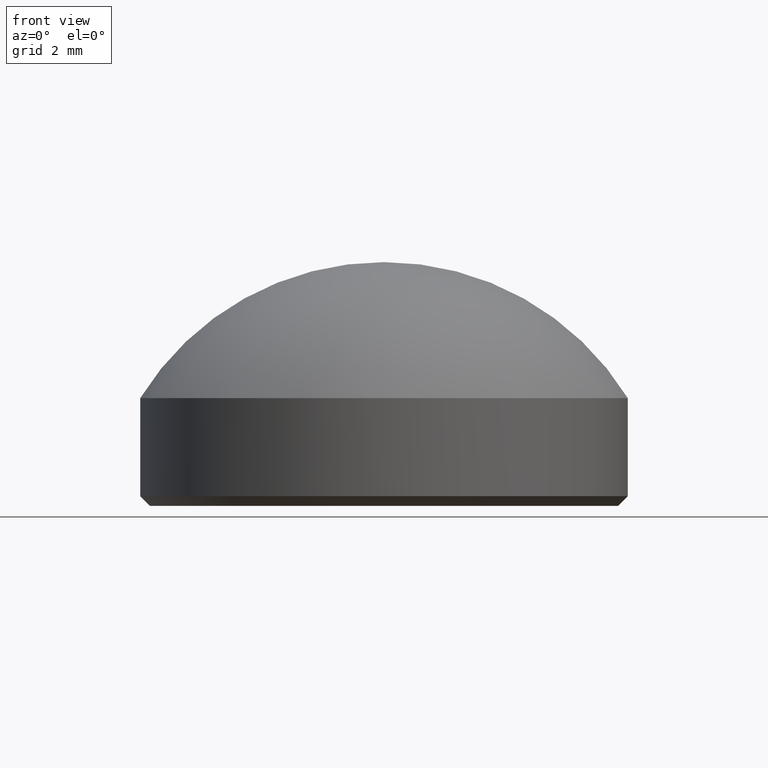
[diagram: clean part render]
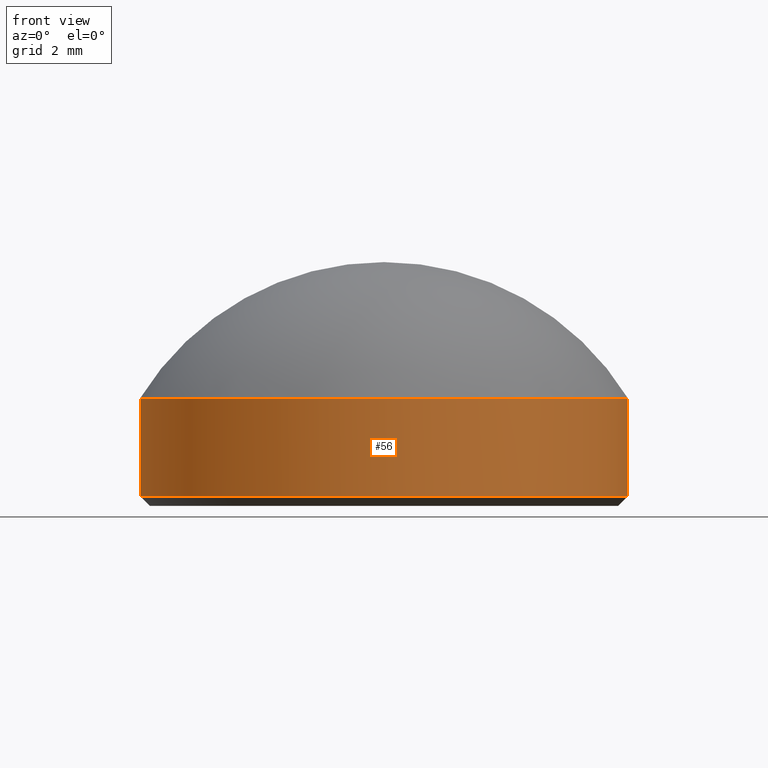
[diagram: same view with one face highlighted and labeled with its STEP entity id]
A machine part, front view. The second image highlights one B-rep face of the part: STEP entity #56.
In plain terms, the highlighted cylindrical surface (partial cylindrical patch) has radius 5 mm, axis along (-0, -0, -1).
Its self-contained STEP definition (entity closure, byte-faithful):
#18 = CARTESIAN_POINT ( 'NONE',  ( -5.000000000000000000, 0.000000000000000000, 2.209999999999999964 ) ) ;
#25 = LINE ( 'NONE', #207, #166 ) ;
#27 = VERTEX_POINT ( 'NONE', #129 ) ;
#30 = EDGE_CURVE ( 'NONE', #183, #167, #97, .T. ) ;
#38 = EDGE_CURVE ( 'NONE', #156, #27, #77, .T. ) ;
#43 = DIRECTION ( 'NONE',  ( -1.000000000000000000, 0.000000000000000000, 0.000000000000000000 ) ) ;
#44 = AXIS2_PLACEMENT_3D ( 'NONE', #186, #76, #43 ) ;
#45 = ORIENTED_EDGE ( 'NONE', *, *, #38, .T. ) ;
#47 = FACE_OUTER_BOUND ( 'NONE', #98, .T. ) ;
#56 = ADVANCED_FACE ( 'NONE', ( #47 ), #191, .T. ) ;
#66 = EDGE_CURVE ( 'NONE', #167, #27, #25, .T. ) ;
#72 = CARTESIAN_POINT ( 'NONE',  ( -5.000000000000000000, 0.000000000000000000, 2.209999999999999964 ) ) ;
#76 = DIRECTION ( 'NONE',  ( -0.000000000000000000, -0.000000000000000000, -1.000000000000000000 ) ) ;
#77 = CIRCLE ( 'NONE', #92, 5.000000000000000000 ) ;
#78 = DIRECTION ( 'NONE',  ( 0.000000000000000000, 0.000000000000000000, 1.000000000000000000 ) ) ;
#79 = CARTESIAN_POINT ( 'NONE',  ( -5.000000000000000000, 0.000000000000000000, 0.1999999999999987899 ) ) ;
#92 = AXIS2_PLACEMENT_3D ( 'NONE', #170, #168, #210 ) ;
#97 = CIRCLE ( 'NONE', #120, 5.000000000000000000 ) ;
#98 = EDGE_LOOP ( 'NONE', ( #114, #164, #206, #45 ) ) ;
#114 = ORIENTED_EDGE ( 'NONE', *, *, #66, .F. ) ;
#120 = AXIS2_PLACEMENT_3D ( 'NONE', #209, #78, #143 ) ;
#127 = DIRECTION ( 'NONE',  ( -0.000000000000000000, -0.000000000000000000, -1.000000000000000000 ) ) ;
#128 = VECTOR ( 'NONE', #199, 1000.000000000000000 ) ;
#129 = CARTESIAN_POINT ( 'NONE',  ( 5.000000000000000000, 6.123233995736766282E-16, 0.1999999999999987899 ) ) ;
#135 = LINE ( 'NONE', #18, #128 ) ;
#143 = DIRECTION ( 'NONE',  ( 1.000000000000000000, 0.000000000000000000, 0.000000000000000000 ) ) ;
#156 = VERTEX_POINT ( 'NONE', #79 ) ;
#164 = ORIENTED_EDGE ( 'NONE', *, *, #30, .F. ) ;
#166 = VECTOR ( 'NONE', #127, 1000.000000000000000 ) ;
#167 = VERTEX_POINT ( 'NONE', #201 ) ;
#168 = DIRECTION ( 'NONE',  ( -0.000000000000000000, -0.000000000000000000, 1.000000000000000000 ) ) ;
#170 = CARTESIAN_POINT ( 'NONE',  ( 0.000000000000000000, 0.000000000000000000, 0.1999999999999987899 ) ) ;
#183 = VERTEX_POINT ( 'NONE', #72 ) ;
#186 = CARTESIAN_POINT ( 'NONE',  ( 0.000000000000000000, 0.000000000000000000, 2.209999999999999964 ) ) ;
#191 = CYLINDRICAL_SURFACE ( 'NONE', #44, 5.000000000000000000 ) ;
#199 = DIRECTION ( 'NONE',  ( -0.000000000000000000, -0.000000000000000000, -1.000000000000000000 ) ) ;
#201 = CARTESIAN_POINT ( 'NONE',  ( 5.000000000000000000, 6.123233995736766282E-16, 2.209999999999999964 ) ) ;
#205 = EDGE_CURVE ( 'NONE', #183, #156, #135, .T. ) ;
#206 = ORIENTED_EDGE ( 'NONE', *, *, #205, .T. ) ;
#207 = CARTESIAN_POINT ( 'NONE',  ( 5.000000000000000000, 6.123233995736766282E-16, 2.209999999999999964 ) ) ;
#209 = CARTESIAN_POINT ( 'NONE',  ( 0.000000000000000000, 0.000000000000000000, 2.209999999999999964 ) ) ;
#210 = DIRECTION ( 'NONE',  ( 1.000000000000000000, 0.000000000000000000, 0.000000000000000000 ) ) ;